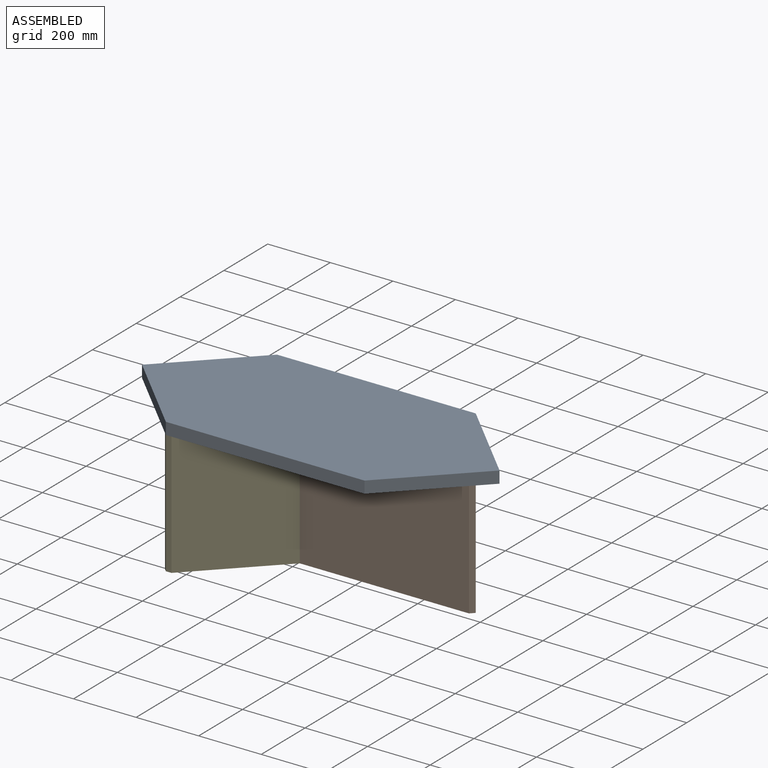
[diagram: assembled view]
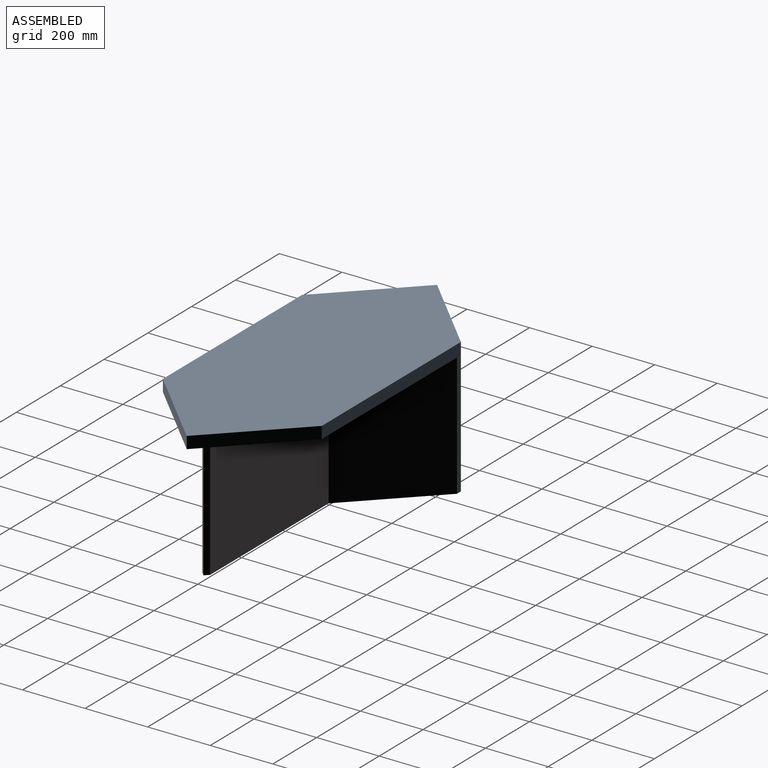
[diagram: assembled view, second angle]
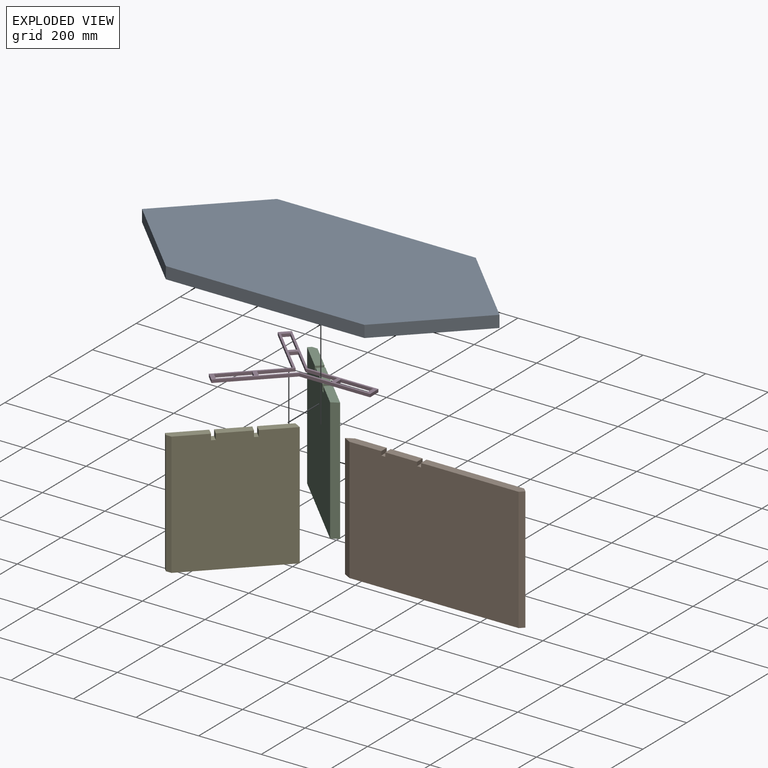
[diagram: exploded view]
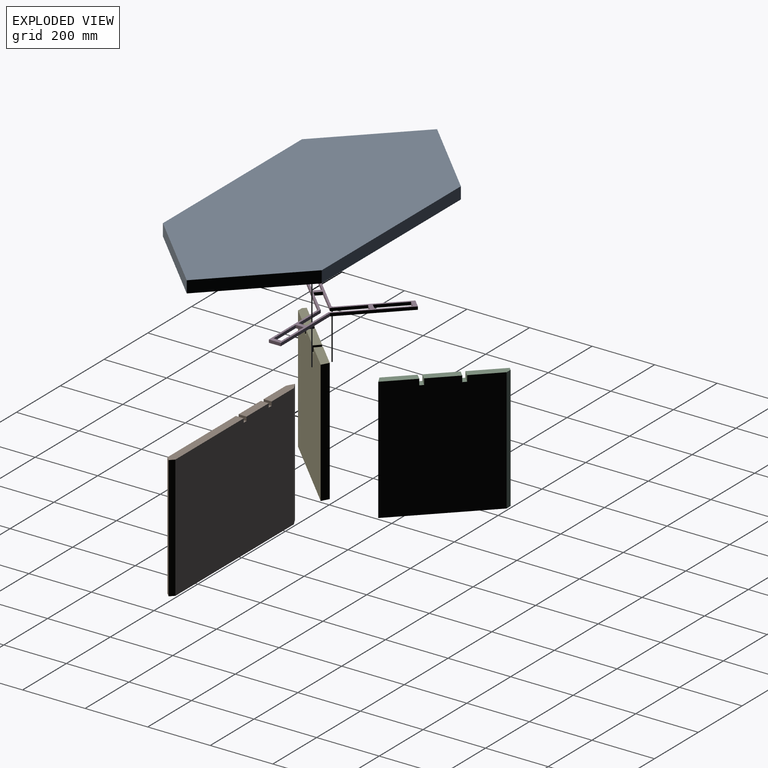
[diagram: exploded view, second angle]
ASSEMBLY  parts=5 mates=4
PART A: 8 faces, bbox 1143x508x38.1 mm
  f0: plane 254x254mm, normal (-0.71,0.71,0), area 13685.9mm2, adj f1,f5,f6,f7
  f1: plane 254x254mm, normal (-0.71,-0.71,0), area 13685.9mm2, adj f0,f2,f6,f7
  f2: plane 635x38.1mm, normal (0,-1,0), area 24193.5mm2, adj f1,f3,f6,f7
  f3: plane 254x254mm, normal (0.71,-0.71,0), area 13685.9mm2, adj f2,f4,f6,f7
  f4: plane 254x254mm, normal (0.71,0.71,0), area 13685.9mm2, adj f3,f5,f6,f7
  f5: plane 635x38.1mm, normal (0,1,0), area 24193.5mm2, adj f0,f4,f6,f7
  f6: plane 1143x508mm, normal (0,0,1), area 451612mm2, adj f0,f1,f2,f3,f4,f5
  f7: plane 1143x508mm, normal (0,0,-1), area 451612mm2, adj f0,f1,f2,f3,f4,f5
PART B: 16 faces, bbox 576.8x25.4x393.7 mm
  f0: plane 25.4x12.7mm, normal (0,0,-1), area 322.6mm2, adj f4,f7,f11,f14
  f1: plane 25.4x12.7mm, normal (0,0,-1), area 322.6mm2, adj f4,f7,f9,f12
  f2: plane 393.7x23.22mm, normal (-0.48,0.88,0), area 10420.1mm2, adj f3,f7,f8,f15
  f3: plane 393.7x23.22mm, normal (-0.48,-0.88,0), area 10420.1mm2, adj f2,f4,f8,f15
  f4: plane 540.84x393.7mm, normal (0,-1,0), area 212605.9mm2, adj f0,f1,f3,f5,f8,f9,f10,f11
  f5: plane 393.7x12.7mm, normal (0.71,-0.71,0), area 7071.1mm2, adj f4,f6,f8,f10
  f6: plane 393.7x12.7mm, normal (0.71,0.71,0), area 7071.1mm2, adj f5,f7,f8,f10
  f7: plane 540.84x393.7mm, normal (0,1,0), area 212605.9mm2, adj f0,f1,f2,f6,f8,f9,f10,f11
  f8: plane 576.76x25.4mm, normal (0,0,1), area 14193.5mm2, adj f2,f3,f4,f5,f6,f7
  f9: plane 25.4x12.7mm, normal (-1,0,0), area 322.6mm2, adj f1,f4,f7,f10
  f10: plane 324.94x25.4mm, normal (0,0,-1), area 8092.2mm2, adj f4,f5,f6,f7,f9
  f11: plane 25.4x12.7mm, normal (-1,0,0), area 322.6mm2, adj f0,f4,f7,f13
  f12: plane 25.4x12.7mm, normal (1,0,0), area 322.6mm2, adj f1,f4,f7,f13
  f13: plane 101.6x25.4mm, normal (0,0,-1), area 2580.6mm2, adj f4,f7,f11,f12
  f14: plane 25.4x12.7mm, normal (1,0,0), area 322.6mm2, adj f0,f4,f7,f15
  f15: plane 124.82x25.4mm, normal (0,0,-1), area 2875.5mm2, adj f2,f3,f4,f7,f14
PART C: 15 faces, bbox 268.2x254x393.7 mm
  f0: plane 26.94x26.94mm, normal (0,0,-1), area 322.6mm2, adj f2,f5,f10,f13
  f1: plane 26.94x26.94mm, normal (0,0,-1), area 322.6mm2, adj f2,f5,f8,f12
  f2: plane 393.7x245.02mm, normal (-0.71,0.71,0), area 135937.2mm2, adj f0,f1,f3,f6,f7,f8,f9,f10
  f3: plane 393.7x8.98mm, normal (-0.71,-0.71,0), area 5000mm2, adj f2,f4,f7,f9
  f4: plane 393.7x17.96mm, normal (0,-1,0), area 7071.1mm2, adj f3,f5,f7,f9
  f5: plane 393.7x241.3mm, normal (0.71,-0.71,0), area 133866.1mm2, adj f0,f1,f4,f6,f7,f8,f9,f10
  f6: plane 393.7x23.22mm, normal (0.48,0.88,0), area 10420.1mm2, adj f2,f5,f7,f11
  f7: plane 268.24x254mm, normal (0,0,1), area 8815.2mm2, adj f2,f3,f4,f5,f6
  f8: plane 19.05x17.96mm, normal (0.71,0.71,0), area 483.9mm2, adj f1,f2,f5,f9
  f9: plane 101.34x92.36mm, normal (0,0,-1), area 2914.3mm2, adj f2,f3,f4,f5,f8
  f10: plane 19.05x17.96mm, normal (-0.71,-0.71,0), area 483.9mm2, adj f0,f2,f5,f11
  f11: plane 95.06x89.8mm, normal (0,0,-1), area 2675.1mm2, adj f2,f5,f6,f10
  f12: plane 19.05x17.96mm, normal (-0.71,-0.71,0), area 483.9mm2, adj f1,f2,f5,f14
  f13: plane 19.05x17.96mm, normal (0.71,0.71,0), area 483.9mm2, adj f0,f2,f5,f14
  f14: plane 89.8x89.8mm, normal (0,0,-1), area 2580.6mm2, adj f2,f5,f12,f13
PART D: 35 faces, bbox 418x368.2x9.5 mm
  f0: plane 25.4x9.53mm, normal (1,0,0), area 241.9mm2, adj f1,f32,f33,f34
  f1: plane 101.6x9.53mm, normal (0,-1,0), area 967.7mm2, adj f0,f2,f33,f34
  f2: plane 25.4x9.53mm, normal (-1,0,0), area 241.9mm2, adj f1,f32,f33,f34
  f3: plane 72.69x72.25mm, normal (0.71,0.7,0), area 976.2mm2, adj f4,f28,f33,f34
  f4: plane 17.98x17.94mm, normal (0.71,-0.71,0), area 241.9mm2, adj f3,f5,f33,f34
  f5: plane 77.1x77.1mm, normal (-0.71,-0.71,0), area 1038.6mm2, adj f4,f6,f33,f34
  f6: plane 101.6x9.53mm, normal (0,-1,0), area 967.7mm2, adj f5,f7,f33,f34
  f7: plane 25.4x9.53mm, normal (-1,0,0), area 241.9mm2, adj f6,f8,f33,f34
  f8: plane 100.74x9.53mm, normal (0,1,0), area 959.5mm2, adj f7,f9,f33,f34
  f9: plane 77.73x77.73mm, normal (-0.71,0.71,0), area 1047.1mm2, adj f8,f10,f33,f34
  f10: plane 17.98x17.94mm, normal (0.71,0.71,0), area 241.9mm2, adj f9,f28,f33,f34
  f11: plane 157.67x157.27mm, normal (-0.71,0.71,0), area 2121.2mm2, adj f12,f29,f33,f34
  f12: plane 22.16x22.11mm, normal (-0.71,-0.71,0), area 298.2mm2, adj f11,f13,f33,f34
  f13: plane 9.53x4.49mm, normal (-0.71,-0.71,0), area 60.5mm2, adj f12,f14,f33,f34
  f14: plane 165.48x165.48mm, normal (0.71,-0.71,0), area 2229mm2, adj f13,f15,f33,f34
  f15: plane 225.51x9.53mm, normal (0,-1,0), area 2148mm2, adj f14,f16,f33,f34
  f16: plane 38.1x9.53mm, normal (1,0,0), area 362.9mm2, adj f15,f17,f33,f34
  f17: plane 225.98x9.53mm, normal (0,1,0), area 2152.5mm2, adj f16,f18,f33,f34
  f18: plane 165.47x164.63mm, normal (0.71,0.71,0), area 2223.3mm2, adj f17,f19,f33,f34
  f19: plane 9.53x4.5mm, normal (-0.71,0.71,0), area 60.5mm2, adj f18,f20,f33,f34
  f20: plane 17.67x17.62mm, normal (-0.71,0.71,0), area 237.7mm2, adj f19,f21,f33,f34
  f21: plane 9.53x4.5mm, normal (-0.71,0.71,0), area 60.5mm2, adj f20,f29,f33,f34
  f22: plane 72.15x71.54mm, normal (0.71,-0.7,0), area 967.7mm2, adj f23,f30,f33,f34
  f23: plane 17.98x17.94mm, normal (-0.71,-0.71,0), area 241.9mm2, adj f22,f24,f33,f34
  f24: plane 71.85x71.83mm, normal (-0.71,0.71,0), area 967.7mm2, adj f23,f30,f33,f34
  f25: plane 71.96x71.72mm, normal (0.71,0.71,0), area 967.7mm2, adj f26,f31,f33,f34
  f26: plane 17.67x17.62mm, normal (0.71,-0.71,0), area 237.7mm2, adj f25,f27,f33,f34
  f27: plane 72.04x71.65mm, normal (-0.71,-0.71,0), area 967.7mm2, adj f26,f31,f33,f34
  f28: plane 72.06x71.62mm, normal (0.7,-0.71,0), area 967.7mm2, adj f3,f10,f33,f34
  f29: plane 157.67x157.27mm, normal (-0.71,-0.71,0), area 2121.2mm2, adj f11,f21,f33,f34
  f30: plane 17.67x17.62mm, normal (0.71,0.71,0), area 237.7mm2, adj f22,f24,f33,f34
  f31: plane 17.98x17.94mm, normal (-0.71,0.71,0), area 241.9mm2, adj f25,f27,f33,f34
  f32: plane 101.6x9.53mm, normal (0,1,0), area 967.7mm2, adj f0,f2,f33,f34
  f33: plane 418.04x368.2mm, normal (0,0,1), area 10578.5mm2, adj f0,f1,f2,f3,f4,f5,f6,f7
  f34: plane 418.04x368.2mm, normal (0,0,-1), area 10578.5mm2, adj f0,f1,f2,f3,f4,f5,f6,f7
PART E: 15 faces, bbox 268.2x254x393.7 mm
  f0: plane 26.94x26.94mm, normal (0,0,-1), area 322.6mm2, adj f4,f6,f11,f13
  f1: plane 26.94x26.94mm, normal (0,0,-1), area 322.6mm2, adj f4,f6,f8,f10
  f2: plane 393.7x17.96mm, normal (0,1,0), area 7071.1mm2, adj f3,f6,f7,f9
  f3: plane 393.7x8.98mm, normal (-0.71,0.71,0), area 5000mm2, adj f2,f4,f7,f9
  f4: plane 393.7x245.02mm, normal (-0.71,-0.71,0), area 135937.2mm2, adj f0,f1,f3,f5,f7,f8,f9,f10
  f5: plane 393.7x23.22mm, normal (0.48,-0.88,0), area 10420.1mm2, adj f4,f6,f7,f14
  f6: plane 393.7x241.3mm, normal (0.71,0.71,0), area 133866.1mm2, adj f0,f1,f2,f5,f7,f8,f9,f10
  f7: plane 268.24x254mm, normal (0,0,1), area 8815.2mm2, adj f2,f3,f4,f5,f6
  f8: plane 19.05x17.96mm, normal (0.71,-0.71,0), area 483.9mm2, adj f1,f4,f6,f9
  f9: plane 101.34x92.36mm, normal (0,0,-1), area 2914.3mm2, adj f2,f3,f4,f6,f8
  f10: plane 19.05x17.96mm, normal (-0.71,0.71,0), area 483.9mm2, adj f1,f4,f6,f12
  f11: plane 19.05x17.96mm, normal (0.71,-0.71,0), area 483.9mm2, adj f0,f4,f6,f12
  f12: plane 89.8x89.8mm, normal (0,0,-1), area 2580.6mm2, adj f4,f6,f10,f11
  f13: plane 19.05x17.96mm, normal (-0.71,0.71,0), area 483.9mm2, adj f0,f4,f6,f14
  f14: plane 95.06x89.8mm, normal (0,0,-1), area 2675.1mm2, adj f4,f5,f6,f13
PLACE A rot(axis=(-1,0,0),180deg) t=(-485.01,-394.69,30.78)mm
PLACE B rot(axis=(-1,0,0),180deg) t=(0,-394.69,-20.02)mm
PLACE C rot(axis=(-1,0,0),180deg) t=(48.87,-394.69,-26.37)mm
PLACE D rot(axis=(-1,0,0),180deg) t=(18.51,-394.7,-7.32)mm
PLACE E rot(axis=(-1,0,0),180deg) t=(48.87,-394.69,-26.37)mm
MATE fastened A.f6 <-> E.f9  axis (0,0,-1) through (-231.01,-648.69,-7.32)mm
MATE fastened D.f27 <-> E.f6  axis (-0.71,0.71,0) through (-93.76,-529.39,-7.32)mm
MATE fastened C.f6 <-> B.f3  axis (0.48,-0.88,0) through (28.25,-381.99,-401.02)mm
MATE fastened E.f5 <-> B.f2  axis (0.48,0.88,0) through (28.25,-407.39,-401.02)mm
